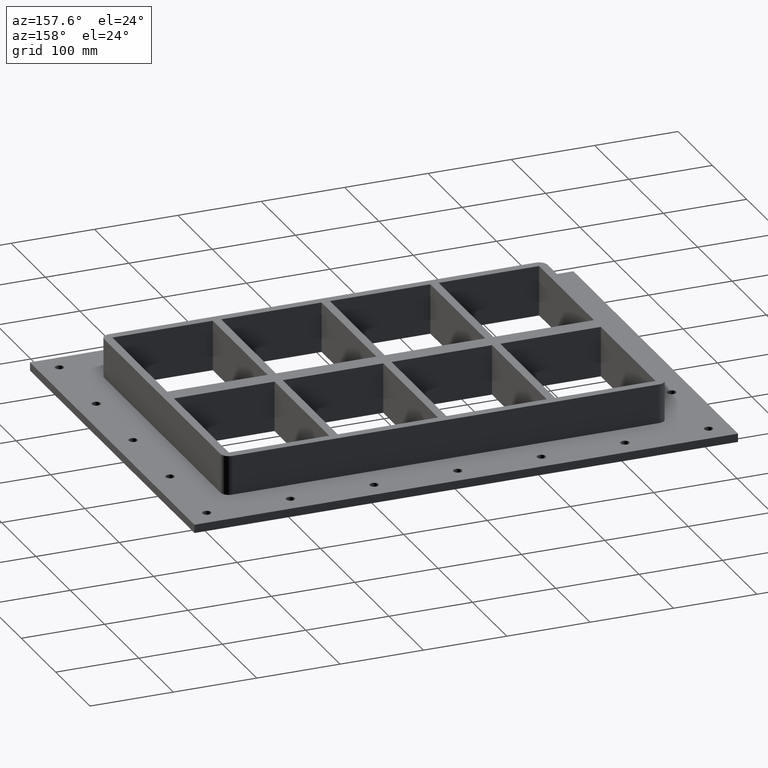
[diagram: clean part render]
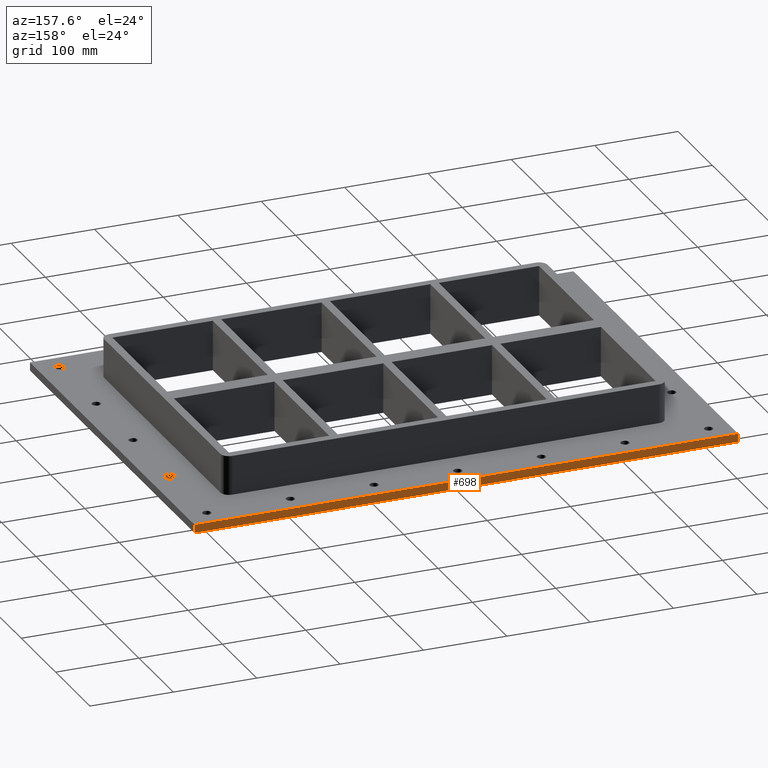
[diagram: same view with one face highlighted and labeled with its STEP entity id]
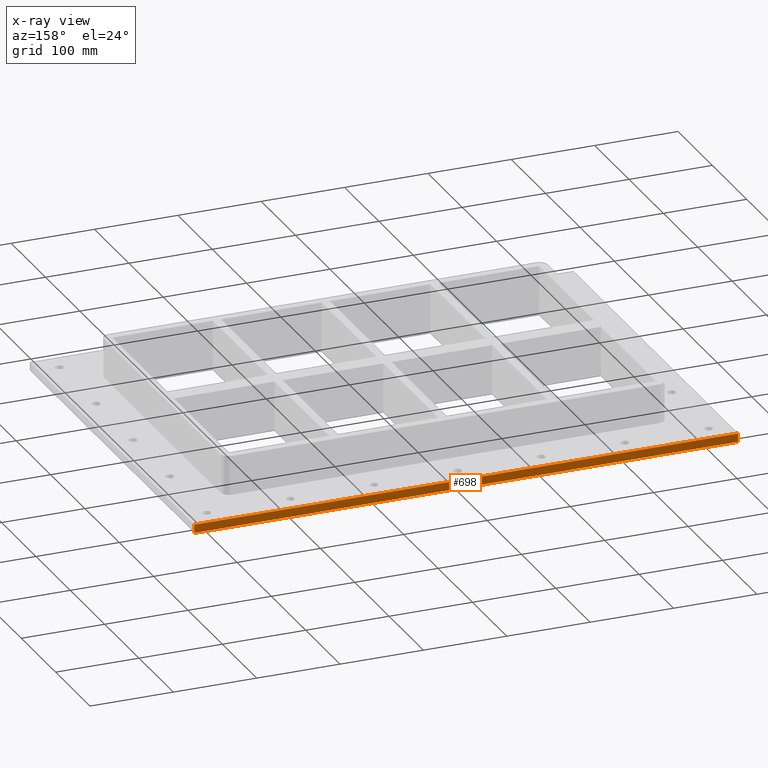
[diagram: x-ray of the same camera — body ghosted, the highlighted face saturated]
A machine part, auxiliary view. The second image highlights one B-rep face of the part: STEP entity #698.
The next image is the same camera in x-ray: the body ghosted, the highlighted face saturated — about 0% of this face is hidden behind the body in this view.
In plain terms, the highlighted planar face has unit normal (0, 1, 0).
Its self-contained STEP definition (entity closure, byte-faithful):
#635=CARTESIAN_POINT('',(-326.00000000000011,239.5,-27.0));
#636=VERTEX_POINT('',#635);
#651=CARTESIAN_POINT('',(-326.00000000000011,239.49999999999994,-17.0));
#652=VERTEX_POINT('',#651);
#659=CARTESIAN_POINT('',(-326.00000000000011,239.5,-27.0));
#660=DIRECTION('',(0.0,0.0,1.0));
#661=VECTOR('',#660,10.0);
#662=LINE('',#659,#661);
#663=EDGE_CURVE('',#636,#652,#662,.T.);
#668=CARTESIAN_POINT('',(325.99999999999994,239.50000000000011,-27.0));
#669=DIRECTION('',(0.0,1.0,0.0));
#670=DIRECTION('',(-1.0,0.0,0.0));
#671=AXIS2_PLACEMENT_3D('',#668,#669,#670);
#672=PLANE('',#671);
#673=CARTESIAN_POINT('',(325.99999999999994,239.50000000000011,-27.0));
#674=VERTEX_POINT('',#673);
#675=CARTESIAN_POINT('',(-326.00000000000011,239.5,-27.0));
#676=DIRECTION('',(1.0,0.0,0.0));
#677=VECTOR('',#676,652.0);
#678=LINE('',#675,#677);
#679=EDGE_CURVE('',#636,#674,#678,.T.);
#680=ORIENTED_EDGE('',*,*,#679,.F.);
#681=ORIENTED_EDGE('',*,*,#663,.T.);
#682=CARTESIAN_POINT('',(325.99999999999994,239.50000000000011,-17.0));
#683=VERTEX_POINT('',#682);
#684=CARTESIAN_POINT('',(325.99999999999989,239.50000000000011,-17.0));
#685=DIRECTION('',(-1.0,0.0,0.0));
#686=VECTOR('',#685,652.0);
#687=LINE('',#684,#686);
#688=EDGE_CURVE('',#683,#652,#687,.T.);
#689=ORIENTED_EDGE('',*,*,#688,.F.);
#690=CARTESIAN_POINT('',(325.99999999999994,239.50000000000011,-27.0));
#691=DIRECTION('',(0.0,0.0,1.0));
#692=VECTOR('',#691,10.0);
#693=LINE('',#690,#692);
#694=EDGE_CURVE('',#674,#683,#693,.T.);
#695=ORIENTED_EDGE('',*,*,#694,.F.);
#696=EDGE_LOOP('',(#680,#681,#689,#695));
#697=FACE_OUTER_BOUND('',#696,.T.);
#698=ADVANCED_FACE('',(#697),#672,.T.);